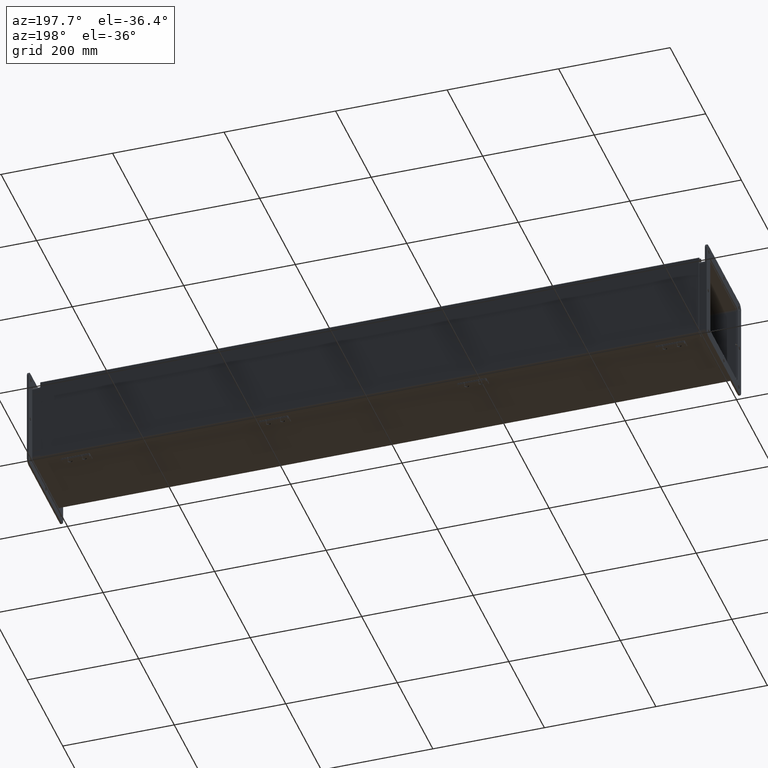
[diagram: clean part render]
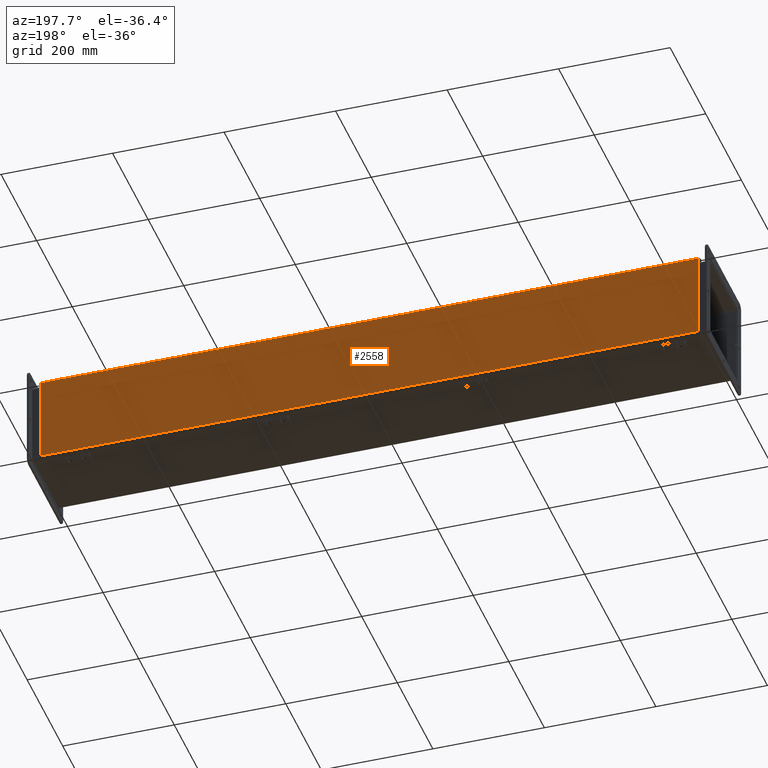
[diagram: same view with one face highlighted and labeled with its STEP entity id]
A machine part, auxiliary view. The second image highlights one B-rep face of the part: STEP entity #2558.
In plain terms, the highlighted planar face has unit normal (-0, 1, -0).
Its self-contained STEP definition (entity closure, byte-faithful):
#2132=CARTESIAN_POINT('',(46.5,6.207250000000006,0.074));
#2133=VERTEX_POINT('',#2132);
#2141=CARTESIAN_POINT('',(46.5,0.10525,0.074));
#2142=VERTEX_POINT('',#2141);
#2143=CARTESIAN_POINT('',(46.5,6.207250000000006,0.074));
#2144=DIRECTION('',(0.0,-1.0,0.0));
#2145=VECTOR('',#2144,6.102000000000007);
#2146=LINE('',#2143,#2145);
#2147=EDGE_CURVE('',#2133,#2142,#2146,.T.);
#2249=CARTESIAN_POINT('',(-1.909350E-017,0.105249999999992,0.074));
#2250=VERTEX_POINT('',#2249);
#2258=CARTESIAN_POINT('',(6.331777E-018,6.207250000000003,0.074));
#2259=VERTEX_POINT('',#2258);
#2260=CARTESIAN_POINT('',(0.0,0.105249999999992,0.074));
#2261=DIRECTION('',(0.0,1.0,0.0));
#2262=VECTOR('',#2261,6.102000000000011);
#2263=LINE('',#2260,#2262);
#2264=EDGE_CURVE('',#2250,#2259,#2263,.T.);
#2435=CARTESIAN_POINT('',(0.0,0.105249999999991,0.074));
#2436=DIRECTION('',(1.0,0.0,0.0));
#2437=VECTOR('',#2436,46.5);
#2438=LINE('',#2435,#2437);
#2439=EDGE_CURVE('',#2250,#2142,#2438,.T.);
#2537=CARTESIAN_POINT('',(46.5,6.207250000000006,0.074));
#2538=DIRECTION('',(-1.0,0.0,0.0));
#2539=VECTOR('',#2538,46.5);
#2540=LINE('',#2537,#2539);
#2541=EDGE_CURVE('',#2133,#2259,#2540,.T.);
#2547=CARTESIAN_POINT('',(23.249999999999993,3.156250000000002,0.074));
#2548=DIRECTION('',(0.0,0.0,1.0));
#2549=DIRECTION('',(1.0,0.0,0.0));
#2550=AXIS2_PLACEMENT_3D('',#2547,#2548,#2549);
#2551=PLANE('',#2550);
#2552=ORIENTED_EDGE('',*,*,#2439,.T.);
#2553=ORIENTED_EDGE('',*,*,#2147,.F.);
#2554=ORIENTED_EDGE('',*,*,#2541,.T.);
#2555=ORIENTED_EDGE('',*,*,#2264,.F.);
#2556=EDGE_LOOP('',(#2552,#2553,#2554,#2555));
#2557=FACE_OUTER_BOUND('',#2556,.T.);
#2558=ADVANCED_FACE('',(#2557),#2551,.T.);